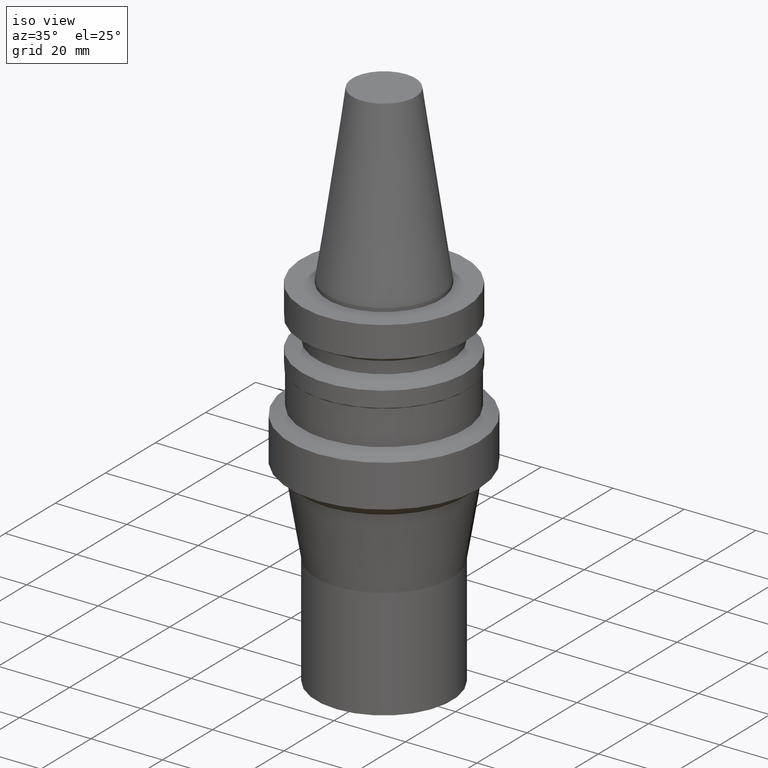
[diagram: clean part render]
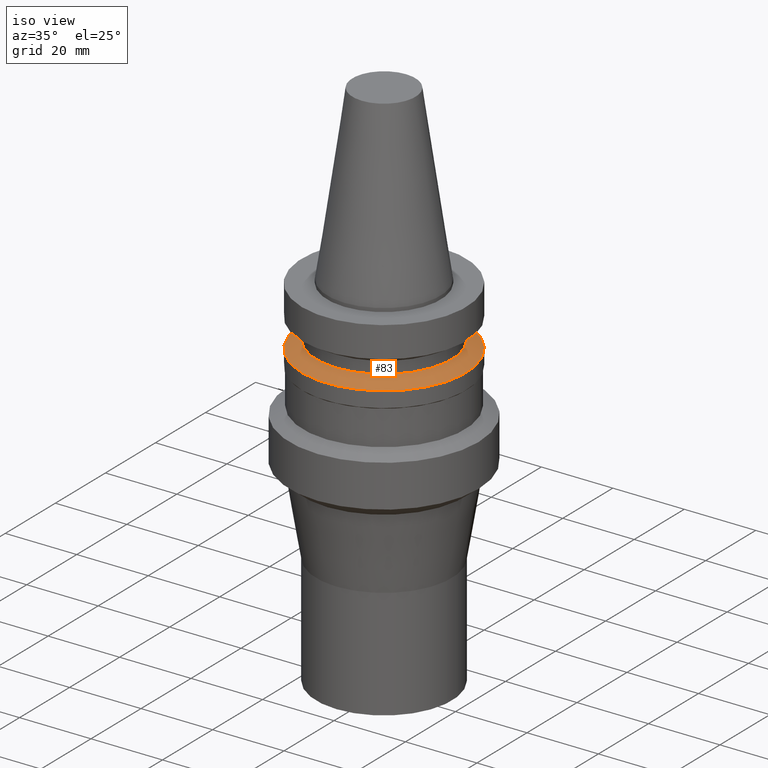
[diagram: same view with one face highlighted and labeled with its STEP entity id]
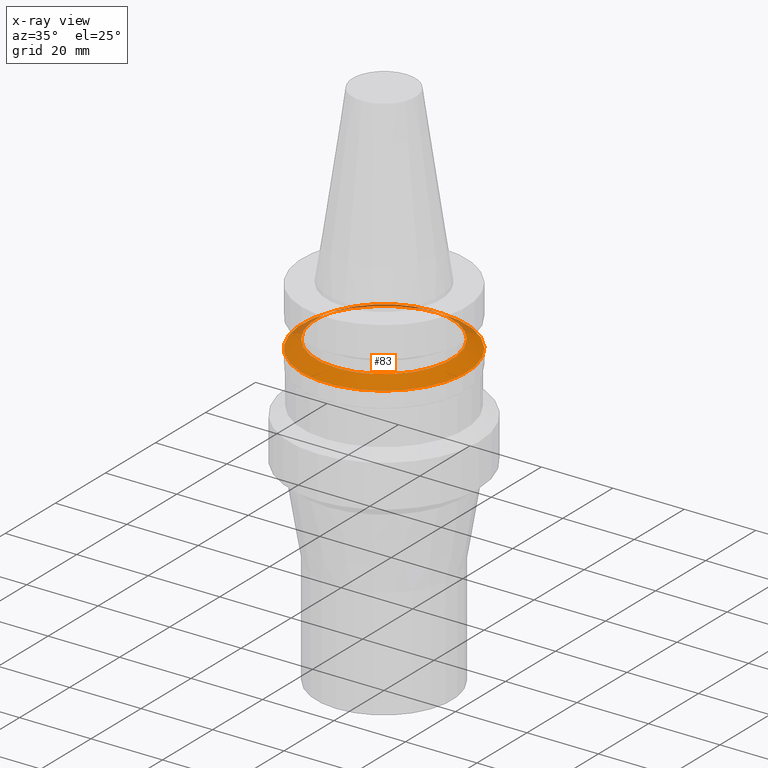
[diagram: x-ray of the same camera — body ghosted, the highlighted face saturated]
A machine part, iso view. The second image highlights one B-rep face of the part: STEP entity #83.
The next image is the same camera in x-ray: the body ghosted, the highlighted face saturated — about 9% of this face is hidden behind the body in this view.
In plain terms, the highlighted conical surface has half-angle 60 deg.
Its self-contained STEP definition (entity closure, byte-faithful):
#78=EDGE_CURVE('Unnamed[1]',#191,#191,#192,.T.);
#83=ADVANCED_FACE('Unnamed[1]',(#198,#199),#200,.T.);
#88=EDGE_CURVE('Unnamed[1]',#207,#207,#208,.T.);
#191=VERTEX_POINT('',#340);
#192=CIRCLE('',#341,19.0);
#198=FACE_BOUND('',#349,.T.);
#199=FACE_BOUND('',#350,.T.);
#200=CONICAL_SURFACE('',#351,21.0,1.04719755058882);
#207=VERTEX_POINT('',#360);
#208=CIRCLE('',#361,23.0);
#340=CARTESIAN_POINT('',(9.36279151221199E-016,19.0,-15.29059892));
#341=AXIS2_PLACEMENT_3D('',#502,#503,#504);
#349=EDGE_LOOP('',(#509));
#350=EDGE_LOOP('',(#510));
#351=AXIS2_PLACEMENT_3D('',#511,#512,#513);
#360=CARTESIAN_POINT('',(1.07768918324967E-015,23.0,-17.6));
#361=AXIS2_PLACEMENT_3D('',#520,#521,#522);
#502=CARTESIAN_POINT('',(9.36279151221199E-016,1.8725583024424E-015,-15.29059892));
#503=DIRECTION('',(6.12323399573677E-017,1.22464679914735E-016,-1.0));
#504=DIRECTION('',(-1.23259516440783E-032,1.0,1.22464679914735E-016));
#509=ORIENTED_EDGE('',*,*,#88,.F.);
#510=ORIENTED_EDGE('',*,*,#78,.T.);
#511=CARTESIAN_POINT('',(1.00698416723543E-015,2.01396833447087E-015,-16.44529946));
#512=DIRECTION('',(6.12323399573677E-017,1.22464679914735E-016,-1.0));
#513=DIRECTION('',(-1.23259516440783E-032,1.0,1.22464679914735E-016));
#520=CARTESIAN_POINT('',(1.07768918324967E-015,2.15537836649934E-015,-17.6));
#521=DIRECTION('',(6.12323399573677E-017,1.22464679914735E-016,-1.0));
#522=DIRECTION('',(-1.23259516440783E-032,1.0,1.22464679914735E-016));